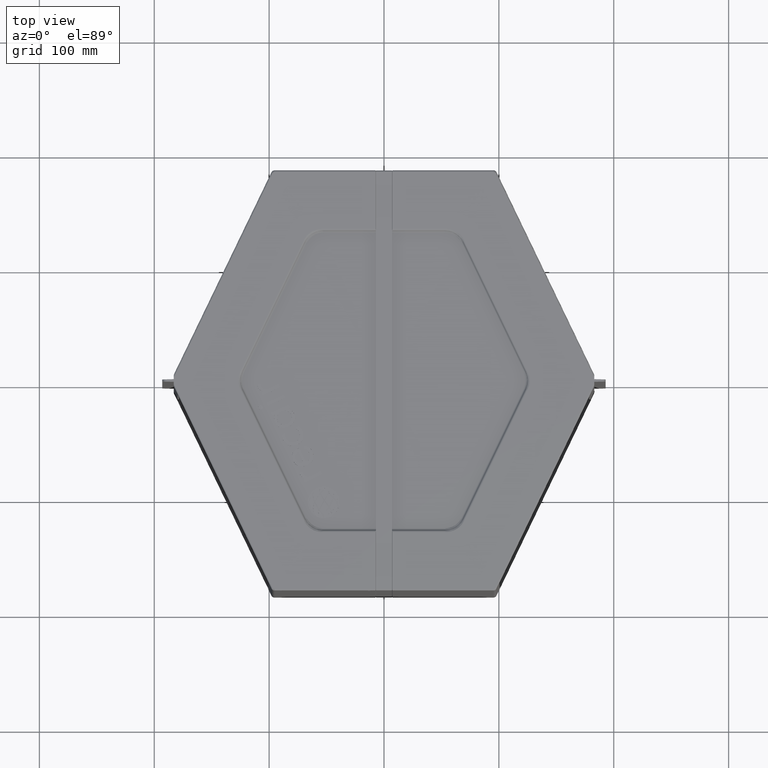
[diagram: clean part render]
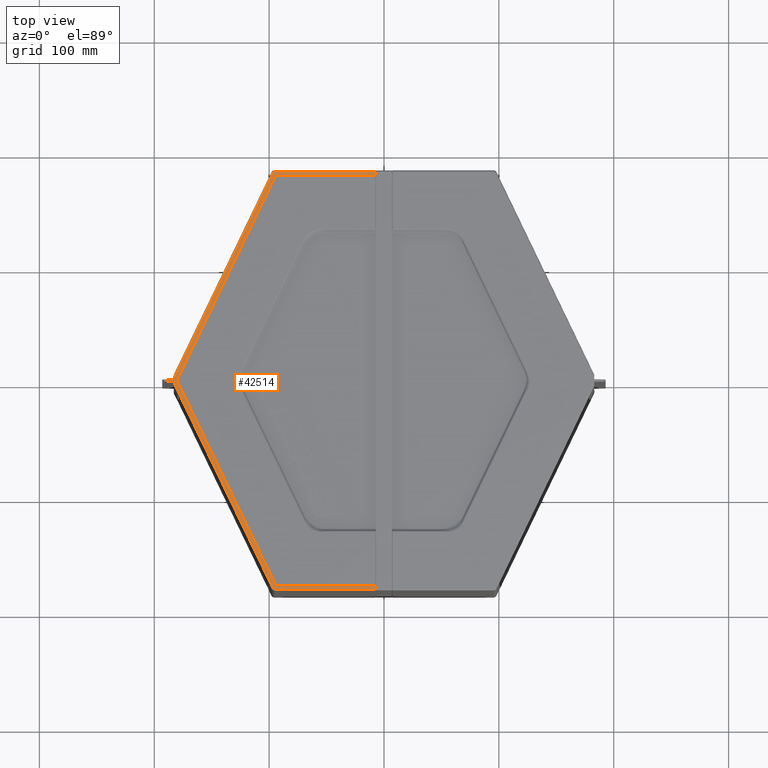
[diagram: same view with one face highlighted and labeled with its STEP entity id]
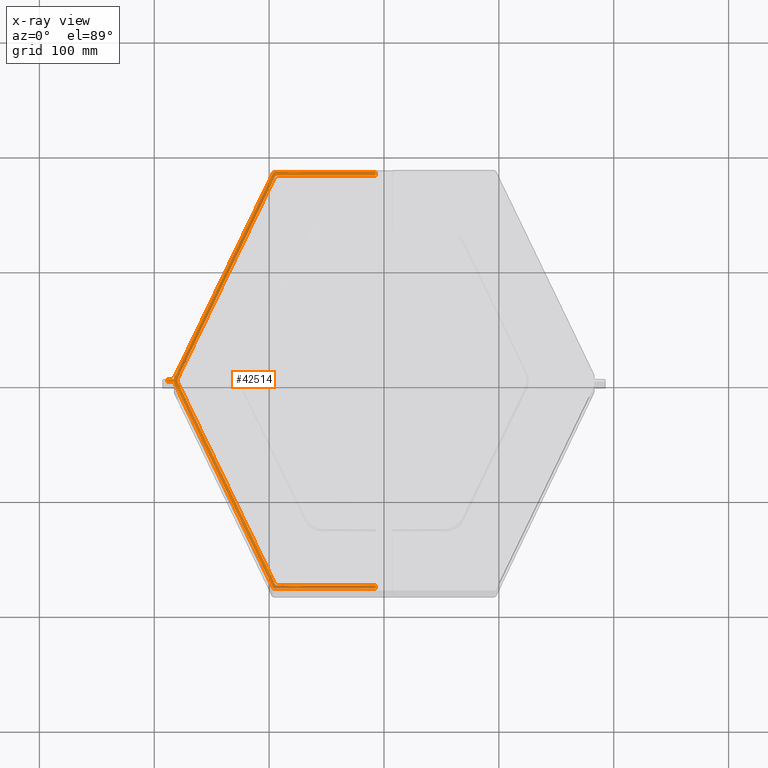
[diagram: x-ray of the same camera — body ghosted, the highlighted face saturated]
A machine part, top view. The second image highlights one B-rep face of the part: STEP entity #42514.
The next image is the same camera in x-ray: the body ghosted, the highlighted face saturated — about 0% of this face is hidden behind the body in this view.
In plain terms, the highlighted planar face has unit normal (0, 0, -1).
Its self-contained STEP definition (entity closure, byte-faithful):
#600=ELLIPSE('',#45061,1.50199207284241,1.5);
#601=ELLIPSE('',#45062,1.50199207284241,1.5);
#2322=PLANE('',#45060);
#3995=FACE_OUTER_BOUND('',#6285,.T.);
#6285=EDGE_LOOP('',(#32233,#32234,#32235,#32236,#32237,#32238,#32239,#32240,
#32241,#32242,#32243,#32244,#32245,#32246,#32247,#32248,#32249,#32250,#32251,
#32252));
#8679=LINE('',#59416,#12847);
#8680=LINE('',#59420,#12848);
#8787=LINE('',#59677,#12955);
#8832=LINE('',#59764,#13000);
#8839=LINE('',#59783,#13007);
#9751=LINE('',#69077,#13919);
#9752=LINE('',#69081,#13920);
#9753=LINE('',#69085,#13921);
#9754=LINE('',#69088,#13922);
#9758=LINE('',#69122,#13926);
#9765=LINE('',#69169,#13933);
#9766=LINE('',#69170,#13934);
#9767=LINE('',#69172,#13935);
#9768=LINE('',#69174,#13936);
#9769=LINE('',#69177,#13937);
#12847=VECTOR('',#48712,10.);
#12848=VECTOR('',#48717,10.);
#12955=VECTOR('',#48902,10.);
#13000=VECTOR('',#48971,10.);
#13007=VECTOR('',#48988,10.);
#13919=VECTOR('',#51202,10.);
#13920=VECTOR('',#51205,10.);
#13921=VECTOR('',#51208,10.);
#13922=VECTOR('',#51211,10.);
#13926=VECTOR('',#51219,10.);
#13933=VECTOR('',#51242,10.);
#13934=VECTOR('',#51243,10.);
#13935=VECTOR('',#51244,10.);
#13936=VECTOR('',#51245,10.);
#13937=VECTOR('',#51248,10.);
#16299=CIRCLE('',#45049,1.99999999999996);
#16300=CIRCLE('',#45050,4.00000000000013);
#16301=CIRCLE('',#45051,1.99999999999993);
#17791=VERTEX_POINT('',#59413);
#17792=VERTEX_POINT('',#59415);
#17793=VERTEX_POINT('',#59419);
#17892=VERTEX_POINT('',#59676);
#17922=VERTEX_POINT('',#59763);
#17929=VERTEX_POINT('',#59781);
#18831=VERTEX_POINT('',#69058);
#18839=VERTEX_POINT('',#69074);
#18840=VERTEX_POINT('',#69076);
#18841=VERTEX_POINT('',#69078);
#18842=VERTEX_POINT('',#69080);
#18843=VERTEX_POINT('',#69082);
#18844=VERTEX_POINT('',#69084);
#18845=VERTEX_POINT('',#69086);
#18849=VERTEX_POINT('',#69120);
#18856=VERTEX_POINT('',#69166);
#18857=VERTEX_POINT('',#69168);
#18858=VERTEX_POINT('',#69171);
#18859=VERTEX_POINT('',#69173);
#18860=VERTEX_POINT('',#69175);
#22033=EDGE_CURVE('',#17792,#17791,#8679,.T.);
#22035=EDGE_CURVE('',#17792,#17793,#8680,.T.);
#22158=EDGE_CURVE('',#17892,#17793,#8787,.T.);
#22205=EDGE_CURVE('',#17922,#17892,#8832,.T.);
#22216=EDGE_CURVE('',#17791,#17929,#8839,.T.);
#23719=EDGE_CURVE('',#18840,#18839,#9751,.T.);
#23720=EDGE_CURVE('',#18841,#18840,#16299,.T.);
#23721=EDGE_CURVE('',#18842,#18841,#9752,.T.);
#23722=EDGE_CURVE('',#18843,#18842,#16300,.T.);
#23723=EDGE_CURVE('',#18844,#18843,#9753,.T.);
#23724=EDGE_CURVE('',#18845,#18844,#16301,.T.);
#23725=EDGE_CURVE('',#18831,#18845,#9754,.T.);
#23732=EDGE_CURVE('',#18849,#17929,#9758,.T.);
#23744=EDGE_CURVE('',#18856,#18849,#600,.T.);
#23745=EDGE_CURVE('',#18857,#18856,#9765,.T.);
#23746=EDGE_CURVE('',#18831,#18857,#9766,.T.);
#23747=EDGE_CURVE('',#18858,#18839,#9767,.T.);
#23748=EDGE_CURVE('',#18859,#18858,#9768,.T.);
#23749=EDGE_CURVE('',#18860,#18859,#601,.T.);
#23750=EDGE_CURVE('',#17922,#18860,#9769,.T.);
#32233=ORIENTED_EDGE('',*,*,#22035,.F.);
#32234=ORIENTED_EDGE('',*,*,#22033,.T.);
#32235=ORIENTED_EDGE('',*,*,#22216,.T.);
#32236=ORIENTED_EDGE('',*,*,#23732,.F.);
#32237=ORIENTED_EDGE('',*,*,#23744,.F.);
#32238=ORIENTED_EDGE('',*,*,#23745,.F.);
#32239=ORIENTED_EDGE('',*,*,#23746,.F.);
#32240=ORIENTED_EDGE('',*,*,#23725,.T.);
#32241=ORIENTED_EDGE('',*,*,#23724,.T.);
#32242=ORIENTED_EDGE('',*,*,#23723,.T.);
#32243=ORIENTED_EDGE('',*,*,#23722,.T.);
#32244=ORIENTED_EDGE('',*,*,#23721,.T.);
#32245=ORIENTED_EDGE('',*,*,#23720,.T.);
#32246=ORIENTED_EDGE('',*,*,#23719,.T.);
#32247=ORIENTED_EDGE('',*,*,#23747,.F.);
#32248=ORIENTED_EDGE('',*,*,#23748,.F.);
#32249=ORIENTED_EDGE('',*,*,#23749,.F.);
#32250=ORIENTED_EDGE('',*,*,#23750,.F.);
#32251=ORIENTED_EDGE('',*,*,#22205,.T.);
#32252=ORIENTED_EDGE('',*,*,#22158,.T.);
#42514=ADVANCED_FACE('',(#3995),#2322,.F.);
#45049=AXIS2_PLACEMENT_3D('',#69079,#51203,#51204);
#45050=AXIS2_PLACEMENT_3D('',#69083,#51206,#51207);
#45051=AXIS2_PLACEMENT_3D('',#69087,#51209,#51210);
#45060=AXIS2_PLACEMENT_3D('',#69165,#51238,#51239);
#45061=AXIS2_PLACEMENT_3D('',#69167,#51240,#51241);
#45062=AXIS2_PLACEMENT_3D('',#69176,#51246,#51247);
#48712=DIRECTION('',(0.999687646408123,-0.0249921911602014,3.06066069080192E-18));
#48717=DIRECTION('',(-2.82192864079637E-16,1.,1.22464679914735E-16));
#48902=DIRECTION('',(-0.999687646408123,-0.0249921911602019,3.06066069080202E-18));
#48971=DIRECTION('',(0.,-1.,-1.22464679914735E-16));
#48988=DIRECTION('',(0.,-1.,-1.22464679914735E-16));
#51202=DIRECTION('',(1.,-8.30102461952844E-16,-1.01658232299489E-31));
#51203=DIRECTION('center_axis',(0.,1.22464679914735E-16,-1.));
#51204=DIRECTION('ref_axis',(8.88178419700128E-15,1.,1.22464679914735E-16));
#51205=DIRECTION('',(0.434445257404411,0.900698239322591,1.10303721578407E-16));
#51206=DIRECTION('center_axis',(0.,1.22464679914735E-16,-1.));
#51207=DIRECTION('ref_axis',(-0.900698239322597,0.434445257404399,5.32041993885045E-17));
#51208=DIRECTION('',(-0.434445257404413,0.90069823932259,1.10303721578407E-16));
#51209=DIRECTION('center_axis',(0.,1.22464679914735E-16,-1.));
#51210=DIRECTION('ref_axis',(-0.900698239322603,-0.434445257404385,-5.32041993885028E-17));
#51211=DIRECTION('',(-1.,8.30102461952844E-16,1.01658232299489E-31));
#51219=DIRECTION('',(-0.434445257404411,0.900698239322591,1.10303721578407E-16));
#51238=DIRECTION('center_axis',(0.,1.22464679914735E-16,-1.));
#51239=DIRECTION('ref_axis',(1.,0.,0.));
#51240=DIRECTION('center_axis',(0.,1.22464679914735E-16,-1.));
#51241=DIRECTION('ref_axis',(-0.531768155588308,-0.846889974378142,-1.03714109635218E-16));
#51242=DIRECTION('',(-1.,0.,0.));
#51243=DIRECTION('',(7.88683022957761E-17,-1.,-1.22464679914735E-16));
#51244=DIRECTION('',(7.88683022957761E-17,-1.,-1.22464679914735E-16));
#51245=DIRECTION('',(1.,0.,0.));
#51246=DIRECTION('center_axis',(0.,1.22464679914735E-16,-1.));
#51247=DIRECTION('ref_axis',(-0.531768155588308,0.846889974378142,1.03714109635218E-16));
#51248=DIRECTION('',(0.434445257404411,0.900698239322591,1.10303721578407E-16));
#59413=CARTESIAN_POINT('',(-182.999999929012,-1.14999999999996,350.));
#59415=CARTESIAN_POINT('',(-188.999999929012,-0.999999999999968,350.));
#59416=CARTESIAN_POINT('',(-190.512804426201,-0.962179887570239,350.));
#59419=CARTESIAN_POINT('',(-188.999999929012,1.00000000000001,350.));
#59420=CARTESIAN_POINT('',(-188.999999929012,-46.095605907976,350.));
#59676=CARTESIAN_POINT('',(-182.999999929012,1.15000000000001,350.));
#59677=CARTESIAN_POINT('',(-185.512804426201,1.08717988757028,350.));
#59763=CARTESIAN_POINT('',(-182.999999929012,1.49378279702934,350.));
#59764=CARTESIAN_POINT('',(-182.999999929012,-2.14313189850787E-14,350.));
#59781=CARTESIAN_POINT('',(-182.999999929012,-1.49378279702939,350.));
#59783=CARTESIAN_POINT('',(-182.999999929012,-2.14313189850787E-14,350.));
#69058=CARTESIAN_POINT('',(-7.45000000000003,-178.476740500801,350.00005));
#69074=CARTESIAN_POINT('',(-7.45000000000007,178.476740500801,350.));
#69076=CARTESIAN_POINT('',(-93.04699173624,178.476740500801,350.));
#69077=CARTESIAN_POINT('',(-116.417586422955,178.476740500801,350.));
#69078=CARTESIAN_POINT('',(-94.8483882148852,177.34563101561,350.));
#69079=CARTESIAN_POINT('Origin',(-93.0469917362401,176.476740500801,350.));
#69080=CARTESIAN_POINT('',(-179.551559886208,1.73778102961741,350.));
#69081=CARTESIAN_POINT('',(-194.352522341474,-28.9477900441351,350.));
#69082=CARTESIAN_POINT('',(-179.551559886208,-1.73778102961789,350.));
#69083=CARTESIAN_POINT('Origin',(-175.948766928918,-2.41394255738938E-13,
350.));
#69084=CARTESIAN_POINT('',(-94.8483882148851,-177.34563101561,350.));
#69085=CARTESIAN_POINT('',(-115.573965656593,-134.377061805719,350.));
#69086=CARTESIAN_POINT('',(-93.0469917362399,-178.476740500801,350.));
#69087=CARTESIAN_POINT('Origin',(-93.04699173624,-176.476740500801,350.));
#69088=CARTESIAN_POINT('',(-73.6190905548347,-178.476740500801,350.));
#69120=CARTESIAN_POINT('',(-96.595324191462,-180.629215811105,350.));
#69122=CARTESIAN_POINT('',(-160.314820333654,-48.525027751409,350.));
#69165=CARTESIAN_POINT('Origin',(-139.788181109669,-93.0912118159519,350.));
#69166=CARTESIAN_POINT('',(-95.2455627301962,-181.476740500801,350.));
#69167=CARTESIAN_POINT('Origin',(-95.2437689911332,-179.975311473056,350.));
#69168=CARTESIAN_POINT('',(-7.45000000000003,-181.476740500801,350.));
#69169=CARTESIAN_POINT('',(-118.465586622072,-181.476740500801,350.));
#69170=CARTESIAN_POINT('',(-7.45000000000005,44.954394092024,350.));
#69171=CARTESIAN_POINT('',(-7.45000000000007,181.476740500801,350.));
#69172=CARTESIAN_POINT('',(-7.45000000000005,44.954394092024,350.));
#69173=CARTESIAN_POINT('',(-95.2455627301962,181.476740500801,350.));
#69174=CARTESIAN_POINT('',(-21.3225944875977,181.476740500801,350.));
#69175=CARTESIAN_POINT('',(-96.5953241914619,180.629215811105,350.));
#69176=CARTESIAN_POINT('Origin',(-95.2437689911332,179.975311473056,350.));
#69177=CARTESIAN_POINT('',(-153.813287250111,62.0041008945511,350.));